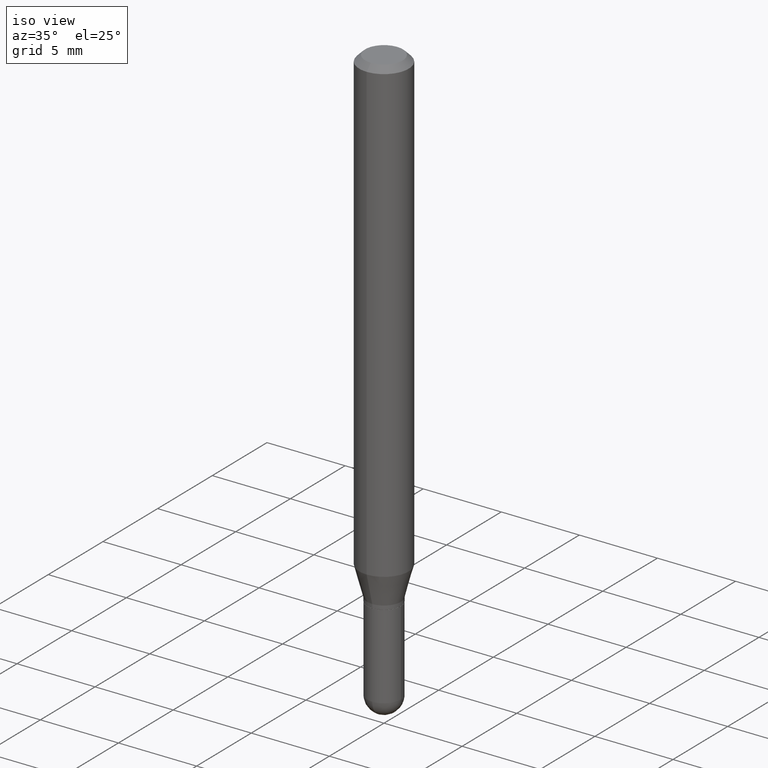
[diagram: clean part render]
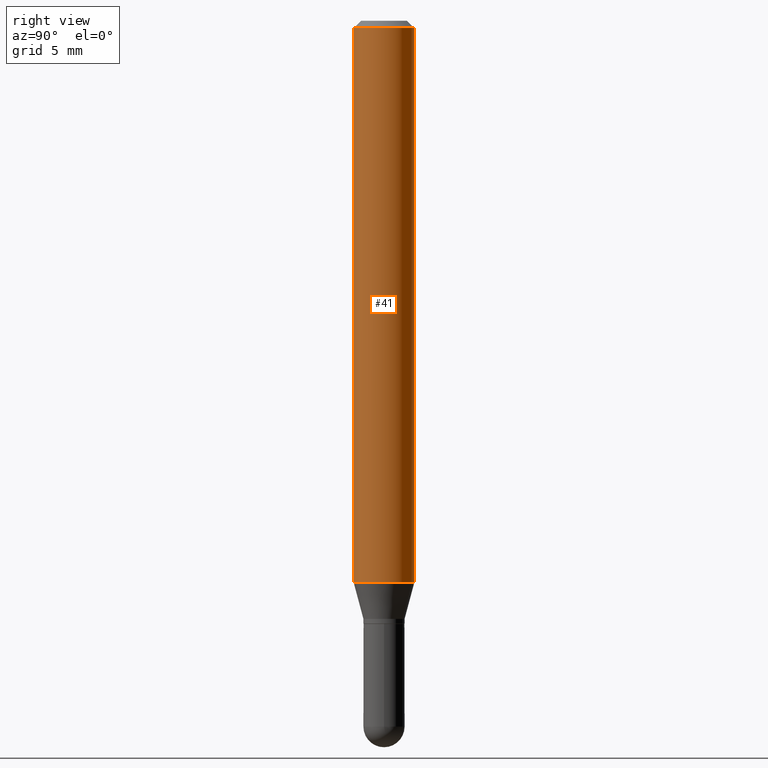
[diagram: tour spotlight — one face highlighted and labeled with its STEP entity id]
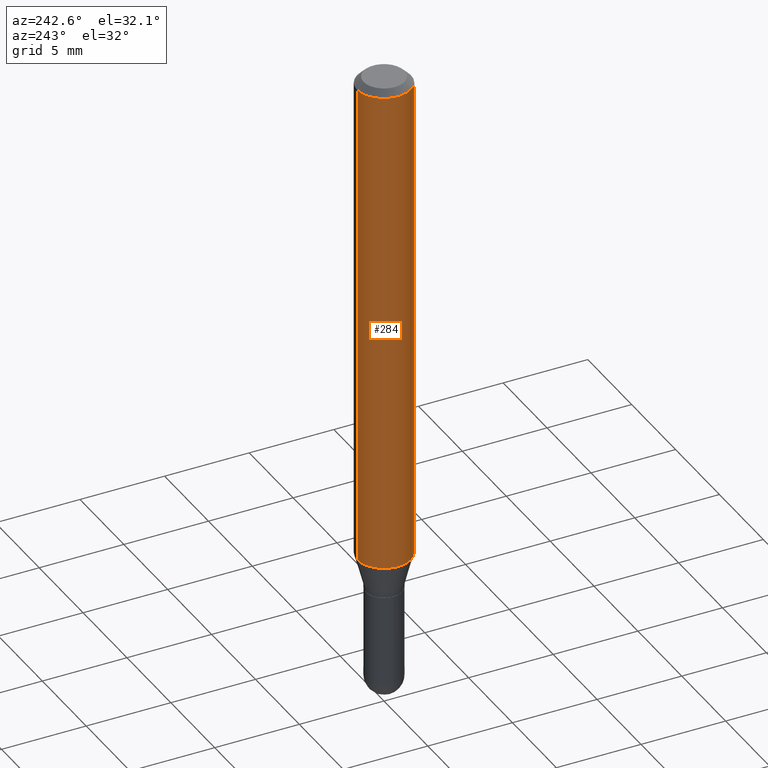
[diagram: tour spotlight — one face highlighted and labeled with its STEP entity id]
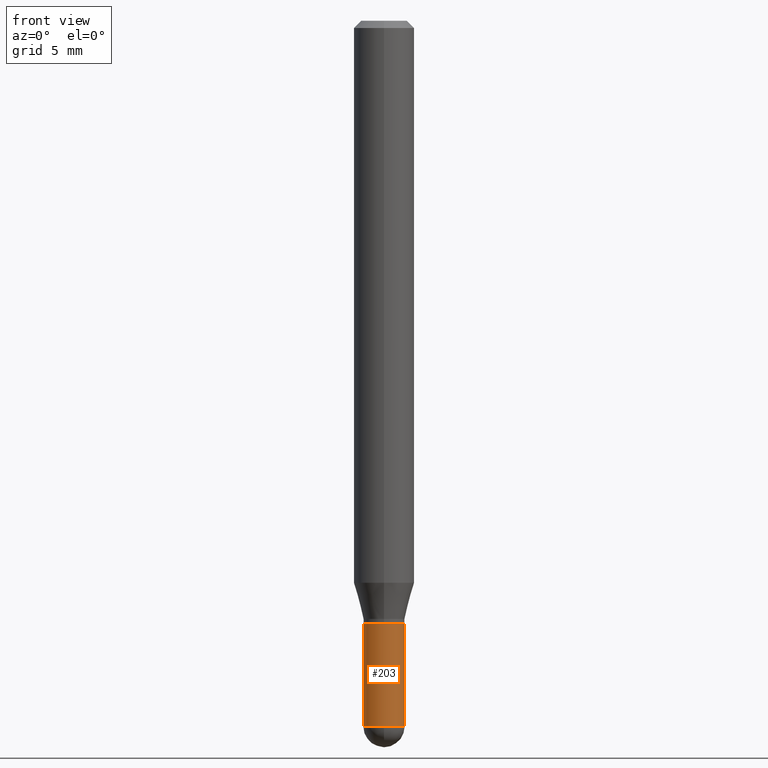
[diagram: tour spotlight — one face highlighted and labeled with its STEP entity id]
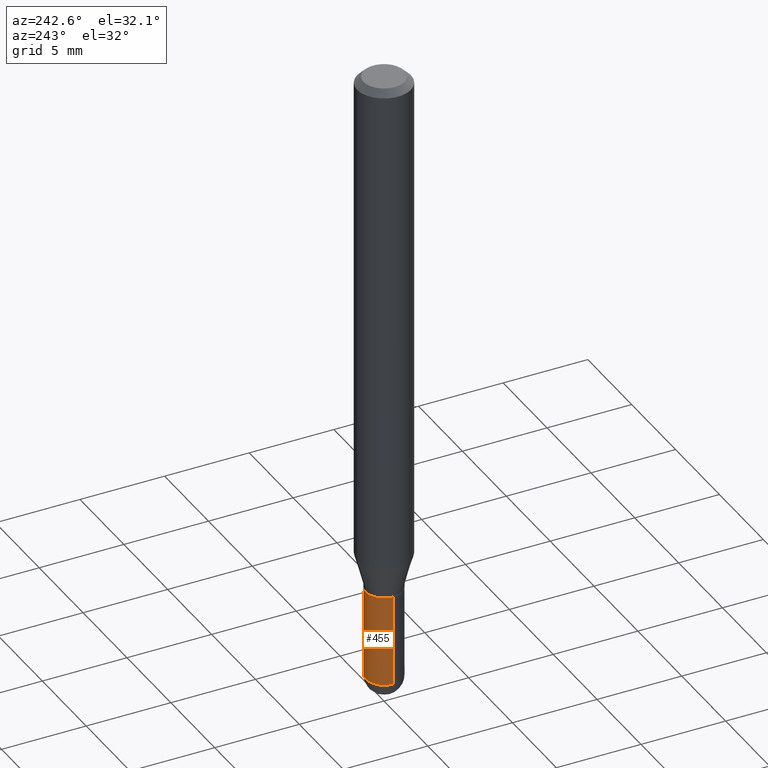
[diagram: tour spotlight — one face highlighted and labeled with its STEP entity id]
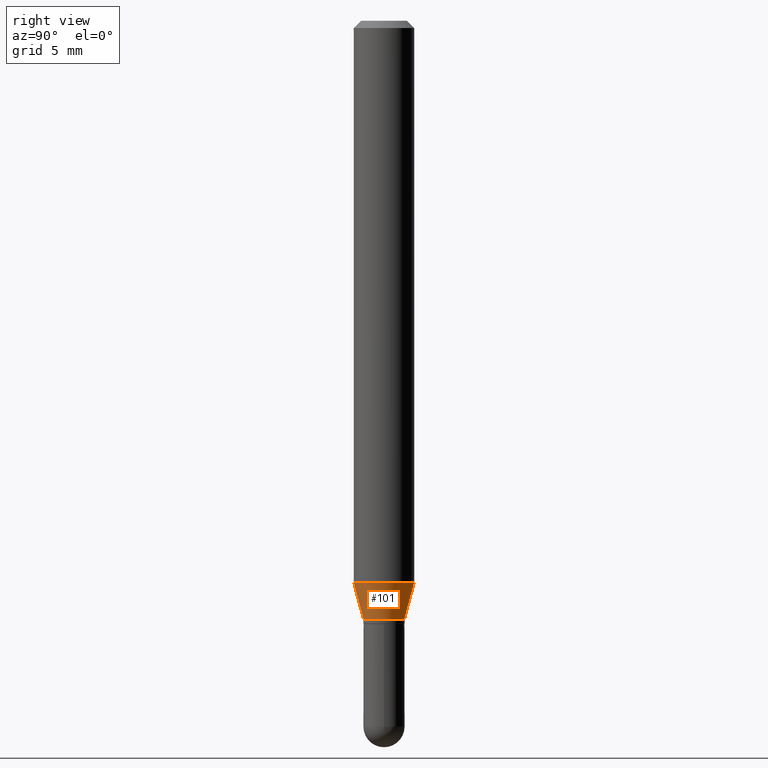
[diagram: tour spotlight — one face highlighted and labeled with its STEP entity id]
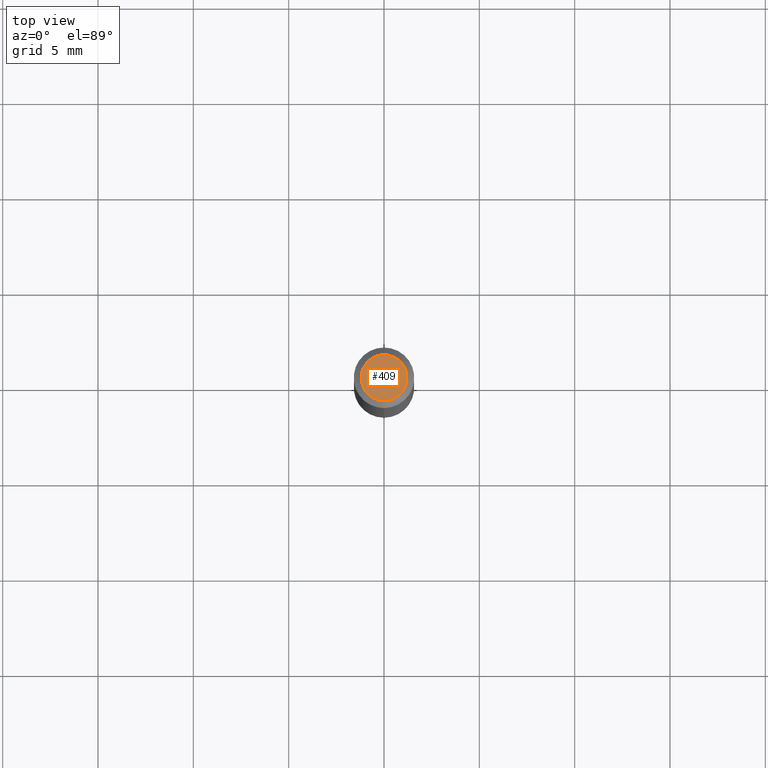
[diagram: tour spotlight — one face highlighted and labeled with its STEP entity id]
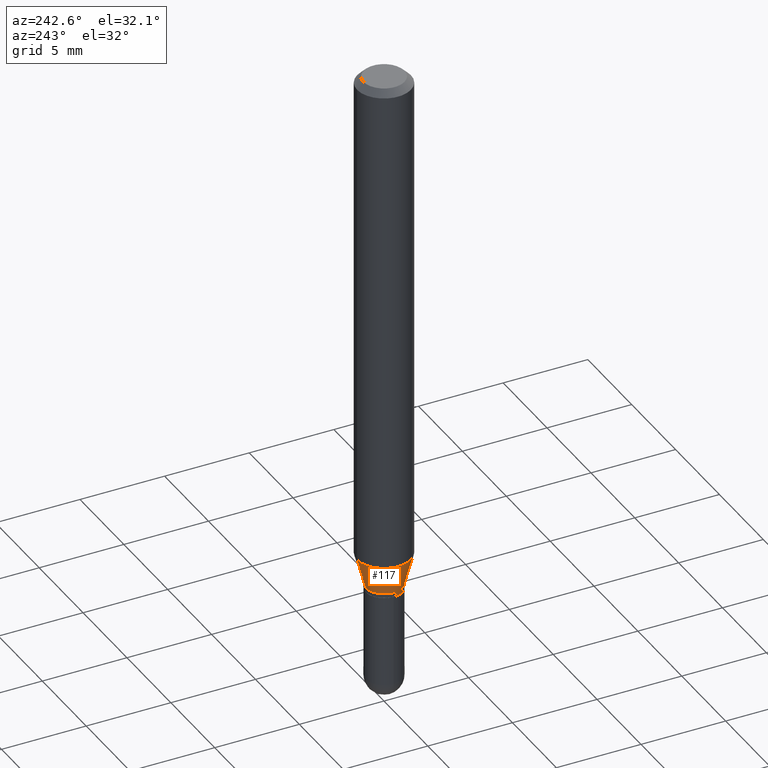
[diagram: tour spotlight — one face highlighted and labeled with its STEP entity id]
A machine part: a face-by-face anatomy tour. The part has 17 B-rep faces; the first image is the clean iso view, then the 7 largest visible faces are spotlighted one at a time (largest first), each with its STEP entity span.

Face 1 — right view, entity #41. In plain terms, the highlighted cylindrical surface (edge-blend (fillet) strip) has radius 1.5875 mm, axis along (-0, 0, 1).
Definition (entity closure, byte-faithful):
#4 = VECTOR ( 'NONE', #168, 39.37007874015748143 ) ;
#9 = ORIENTED_EDGE ( 'NONE', *, *, #295, .F. ) ;
#10 = CARTESIAN_POINT ( 'NONE',  ( -4.364351673553916201E-16, -0.06250000000000000000, 2.182108451735135262E-16 ) ) ;
#23 = DIRECTION ( 'NONE',  ( -2.445544093742278605E-29, 3.491373522776216420E-15, 1.000000000000000000 ) ) ;
#33 = CARTESIAN_POINT ( 'NONE',  ( 2.837709059571790746E-29, -4.051246633124596325E-15, -1.160358983848622572 ) ) ;
#35 = CARTESIAN_POINT ( 'NONE',  ( 4.440892098500912124E-16, 0.06249999999999598932, -1.160358983848622794 ) ) ;
#41 = ADVANCED_FACE ( 'NONE', ( #413 ), #442, .T. ) ;
#44 = ORIENTED_EDGE ( 'NONE', *, *, #261, .T. ) ;
#45 = CARTESIAN_POINT ( 'NONE',  ( 3.668316140613498255E-31, -5.237060284164438941E-17, -0.01500000000000032904 ) ) ;
#48 = EDGE_LOOP ( 'NONE', ( #453, #44, #9, #137 ) ) ;
#52 = LINE ( 'NONE', #472, #396 ) ;
#57 = CIRCLE ( 'NONE', #86, 0.06250000000000000000 ) ;
#58 = DIRECTION ( 'NONE',  ( -2.445544093742278605E-29, 3.491373522776216420E-15, 1.000000000000000000 ) ) ;
#61 = VERTEX_POINT ( 'NONE', #111 ) ;
#67 = CARTESIAN_POINT ( 'NONE',  ( -4.364351673553912750E-16, -0.06250000000000005551, -0.01500000000000011047 ) ) ;
#72 = CARTESIAN_POINT ( 'NONE',  ( 0.000000000000000000, 0.000000000000000000, 0.000000000000000000 ) ) ;
#82 = DIRECTION ( 'NONE',  ( -2.445544093742278605E-29, 3.491373522776216420E-15, 1.000000000000000000 ) ) ;
#86 = AXIS2_PLACEMENT_3D ( 'NONE', #45, #289, #246 ) ;
#111 = CARTESIAN_POINT ( 'NONE',  ( 4.440892098500911138E-16, 0.06249999999999995143, -0.01500000000000054588 ) ) ;
#128 = VERTEX_POINT ( 'NONE', #35 ) ;
#137 = ORIENTED_EDGE ( 'NONE', *, *, #400, .F. ) ;
#163 = CARTESIAN_POINT ( 'NONE',  ( -4.364351673553629746E-16, -0.06250000000000402456, -1.160358983848622350 ) ) ;
#168 = DIRECTION ( 'NONE',  ( -2.445544093742278605E-29, 3.491373522776216420E-15, 1.000000000000000000 ) ) ;
#187 = CIRCLE ( 'NONE', #330, 0.06250000000000000000 ) ;
#193 = EDGE_CURVE ( 'NONE', #222, #128, #187, .T. ) ;
#222 = VERTEX_POINT ( 'NONE', #163 ) ;
#246 = DIRECTION ( 'NONE',  ( -6.982962677686265922E-15, -1.000000000000000000, 3.483106191921935554E-15 ) ) ;
#261 = EDGE_CURVE ( 'NONE', #128, #61, #52, .T. ) ;
#289 = DIRECTION ( 'NONE',  ( -2.445544093742278605E-29, 3.491373522776216420E-15, 1.000000000000000000 ) ) ;
#295 = EDGE_CURVE ( 'NONE', #477, #61, #57, .T. ) ;
#315 = AXIS2_PLACEMENT_3D ( 'NONE', #72, #23, #496 ) ;
#330 = AXIS2_PLACEMENT_3D ( 'NONE', #33, #82, #346 ) ;
#346 = DIRECTION ( 'NONE',  ( -6.982962677686265922E-15, -1.000000000000000000, 4.370956789862821150E-15 ) ) ;
#396 = VECTOR ( 'NONE', #58, 39.37007874015748143 ) ;
#400 = EDGE_CURVE ( 'NONE', #222, #477, #483, .T. ) ;
#413 = FACE_OUTER_BOUND ( 'NONE', #48, .T. ) ;
#442 = CYLINDRICAL_SURFACE ( 'NONE', #315, 0.06250000000000000000 ) ;
#453 = ORIENTED_EDGE ( 'NONE', *, *, #193, .T. ) ;
#472 = CARTESIAN_POINT ( 'NONE',  ( 4.440892098500625669E-16, 0.06250000000000000000, -2.182108451735135262E-16 ) ) ;
#477 = VERTEX_POINT ( 'NONE', #67 ) ;
#483 = LINE ( 'NONE', #10, #4 ) ;
#496 = DIRECTION ( 'NONE',  ( -6.982962677686265922E-15, -1.000000000000000000, 3.491373522776216420E-15 ) ) ;

Face 2 — auxiliary view, entity #284. In plain terms, the highlighted cylindrical surface (edge-blend (fillet) strip) has radius 1.5875 mm, axis along (-0, 0, 1).
Definition (entity closure, byte-faithful):
#4 = VECTOR ( 'NONE', #168, 39.37007874015748143 ) ;
#10 = CARTESIAN_POINT ( 'NONE',  ( -4.364351673553916201E-16, -0.06250000000000000000, 2.182108451735135262E-16 ) ) ;
#12 = ORIENTED_EDGE ( 'NONE', *, *, #400, .T. ) ;
#35 = CARTESIAN_POINT ( 'NONE',  ( 4.440892098500912124E-16, 0.06249999999999598932, -1.160358983848622794 ) ) ;
#49 = CARTESIAN_POINT ( 'NONE',  ( 2.837709059571790746E-29, -4.051246633124596325E-15, -1.160358983848622572 ) ) ;
#52 = LINE ( 'NONE', #472, #396 ) ;
#58 = DIRECTION ( 'NONE',  ( -2.445544093742278605E-29, 3.491373522776216420E-15, 1.000000000000000000 ) ) ;
#61 = VERTEX_POINT ( 'NONE', #111 ) ;
#67 = CARTESIAN_POINT ( 'NONE',  ( -4.364351673553912750E-16, -0.06250000000000005551, -0.01500000000000011047 ) ) ;
#93 = FACE_OUTER_BOUND ( 'NONE', #408, .T. ) ;
#111 = CARTESIAN_POINT ( 'NONE',  ( 4.440892098500911138E-16, 0.06249999999999995143, -0.01500000000000054588 ) ) ;
#123 = AXIS2_PLACEMENT_3D ( 'NONE', #419, #511, #422 ) ;
#128 = VERTEX_POINT ( 'NONE', #35 ) ;
#139 = ORIENTED_EDGE ( 'NONE', *, *, #300, .T. ) ;
#163 = CARTESIAN_POINT ( 'NONE',  ( -4.364351673553629746E-16, -0.06250000000000402456, -1.160358983848622350 ) ) ;
#168 = DIRECTION ( 'NONE',  ( -2.445544093742278605E-29, 3.491373522776216420E-15, 1.000000000000000000 ) ) ;
#175 = DIRECTION ( 'NONE',  ( -2.445544093742278605E-29, 3.491373522776216420E-15, 1.000000000000000000 ) ) ;
#207 = DIRECTION ( 'NONE',  ( -2.445544093742278605E-29, 3.491373522776216420E-15, 1.000000000000000000 ) ) ;
#209 = EDGE_CURVE ( 'NONE', #61, #477, #347, .T. ) ;
#212 = CARTESIAN_POINT ( 'NONE',  ( 0.000000000000000000, 0.000000000000000000, 0.000000000000000000 ) ) ;
#222 = VERTEX_POINT ( 'NONE', #163 ) ;
#228 = ORIENTED_EDGE ( 'NONE', *, *, #261, .F. ) ;
#261 = EDGE_CURVE ( 'NONE', #128, #61, #52, .T. ) ;
#284 = ADVANCED_FACE ( 'NONE', ( #93 ), #359, .T. ) ;
#290 = AXIS2_PLACEMENT_3D ( 'NONE', #49, #175, #326 ) ;
#300 = EDGE_CURVE ( 'NONE', #128, #222, #339, .T. ) ;
#326 = DIRECTION ( 'NONE',  ( -6.982962677686265922E-15, -1.000000000000000000, 4.370956789862821150E-15 ) ) ;
#339 = CIRCLE ( 'NONE', #290, 0.06250000000000000000 ) ;
#347 = CIRCLE ( 'NONE', #123, 0.06250000000000000000 ) ;
#359 = CYLINDRICAL_SURFACE ( 'NONE', #424, 0.06250000000000000000 ) ;
#383 = ORIENTED_EDGE ( 'NONE', *, *, #209, .F. ) ;
#396 = VECTOR ( 'NONE', #58, 39.37007874015748143 ) ;
#397 = DIRECTION ( 'NONE',  ( -6.982962677686265922E-15, -1.000000000000000000, 3.491373522776216420E-15 ) ) ;
#400 = EDGE_CURVE ( 'NONE', #222, #477, #483, .T. ) ;
#408 = EDGE_LOOP ( 'NONE', ( #228, #139, #12, #383 ) ) ;
#419 = CARTESIAN_POINT ( 'NONE',  ( 3.668316140613498255E-31, -5.237060284164438941E-17, -0.01500000000000032904 ) ) ;
#422 = DIRECTION ( 'NONE',  ( -6.982962677686265922E-15, -1.000000000000000000, 3.483106191921935554E-15 ) ) ;
#424 = AXIS2_PLACEMENT_3D ( 'NONE', #212, #207, #397 ) ;
#472 = CARTESIAN_POINT ( 'NONE',  ( 4.440892098500625669E-16, 0.06250000000000000000, -2.182108451735135262E-16 ) ) ;
#477 = VERTEX_POINT ( 'NONE', #67 ) ;
#483 = LINE ( 'NONE', #10, #4 ) ;
#511 = DIRECTION ( 'NONE',  ( -2.445544093742278605E-29, 3.491373522776216420E-15, 1.000000000000000000 ) ) ;

Face 3 — front view, entity #203. In plain terms, the highlighted cylindrical surface (edge-blend (fillet) strip) has radius 1.0795 mm, axis along (-0, 0, 1).
Definition (entity closure, byte-faithful):
#13 = AXIS2_PLACEMENT_3D ( 'NONE', #191, #156, #352 ) ;
#28 = ORIENTED_EDGE ( 'NONE', *, *, #148, .F. ) ;
#32 = VERTEX_POINT ( 'NONE', #454 ) ;
#37 = AXIS2_PLACEMENT_3D ( 'NONE', #43, #116, #344 ) ;
#42 = DIRECTION ( 'NONE',  ( -2.445468806185136597E-29, 3.491481338843145583E-15, 1.000000000000000000 ) ) ;
#43 = CARTESIAN_POINT ( 'NONE',  ( 3.564270785014837509E-29, -5.088834051363884851E-15, -1.457500000000000240 ) ) ;
#51 = EDGE_CURVE ( 'NONE', #399, #169, #183, .T. ) ;
#64 = DIRECTION ( 'NONE',  ( -2.445468806185136597E-29, 3.491481338843145583E-15, 1.000000000000000000 ) ) ;
#65 = VECTOR ( 'NONE', #260, 39.37007874015748143 ) ;
#78 = EDGE_CURVE ( 'NONE', #399, #32, #196, .T. ) ;
#85 = EDGE_CURVE ( 'NONE', #415, #124, #146, .T. ) ;
#88 = ORIENTED_EDGE ( 'NONE', *, *, #143, .T. ) ;
#102 = CARTESIAN_POINT ( 'NONE',  ( 3.564270785014837509E-29, -5.088834051363884851E-15, -1.457500000000000240 ) ) ;
#116 = DIRECTION ( 'NONE',  ( -2.445468806185136597E-29, 3.491481338843145583E-15, 1.000000000000000000 ) ) ;
#124 = VERTEX_POINT ( 'NONE', #275 ) ;
#143 = EDGE_CURVE ( 'NONE', #32, #415, #259, .T. ) ;
#144 = ORIENTED_EDGE ( 'NONE', *, *, #78, .T. ) ;
#146 = LINE ( 'NONE', #296, #65 ) ;
#148 = EDGE_CURVE ( 'NONE', #169, #124, #150, .T. ) ;
#150 = CIRCLE ( 'NONE', #497, 0.04249999999999999611 ) ;
#156 = DIRECTION ( 'NONE',  ( -2.445468806185136597E-29, 3.491481338843145583E-15, 1.000000000000000000 ) ) ;
#169 = VERTEX_POINT ( 'NONE', #380 ) ;
#183 = LINE ( 'NONE', #302, #375 ) ;
#186 = ORIENTED_EDGE ( 'NONE', *, *, #51, .F. ) ;
#191 = CARTESIAN_POINT ( 'NONE',  ( 0.000000000000000000, 0.000000000000000000, 0.000000000000000000 ) ) ;
#196 = CIRCLE ( 'NONE', #445, 0.04250000000000000999 ) ;
#203 = ADVANCED_FACE ( 'NONE', ( #387 ), #504, .T. ) ;
#238 = DIRECTION ( 'NONE',  ( 1.000000000000000000, -6.982962677686265133E-15, 0.000000000000000000 ) ) ;
#249 = CARTESIAN_POINT ( 'NONE',  ( -0.04250000000000000999, -4.415883496413759874E-15, -1.457500000000000240 ) ) ;
#259 = CIRCLE ( 'NONE', #37, 0.04250000000000000999 ) ;
#260 = DIRECTION ( 'NONE',  ( -2.445468806185136877E-29, 3.491481338843145188E-15, 1.000000000000000000 ) ) ;
#268 = EDGE_LOOP ( 'NONE', ( #186, #144, #88, #430, #28 ) ) ;
#275 = CARTESIAN_POINT ( 'NONE',  ( 0.04249999999999999611, -4.643670180661383298E-15, -1.245000000000000329 ) ) ;
#296 = CARTESIAN_POINT ( 'NONE',  ( 0.04250000000000000999, -2.967759138016664042E-16, 2.072375129713273202E-30 ) ) ;
#302 = CARTESIAN_POINT ( 'NONE',  ( -0.04250000000000000999, 3.019806626980426500E-16, -2.090547413358335560E-30 ) ) ;
#329 = CARTESIAN_POINT ( 'NONE',  ( 0.04250000000000000999, -5.014640072913468189E-15, -1.457500000000000240 ) ) ;
#342 = DIRECTION ( 'NONE',  ( -2.445468806185136877E-29, 3.491481338843145188E-15, 1.000000000000000000 ) ) ;
#344 = DIRECTION ( 'NONE',  ( 1.000000000000000000, -6.982962677686273810E-15, 0.000000000000000000 ) ) ;
#352 = DIRECTION ( 'NONE',  ( 1.000000000000000000, -6.982962677686266711E-15, 4.876176775795935793E-29 ) ) ;
#372 = DIRECTION ( 'NONE',  ( 1.000000000000000000, -6.982962677686273810E-15, 0.000000000000000000 ) ) ;
#375 = VECTOR ( 'NONE', #342, 39.37007874015748143 ) ;
#380 = CARTESIAN_POINT ( 'NONE',  ( -0.04249999999999999611, -4.415883496413758296E-15, -1.245000000000000329 ) ) ;
#387 = FACE_OUTER_BOUND ( 'NONE', #268, .T. ) ;
#399 = VERTEX_POINT ( 'NONE', #249 ) ;
#415 = VERTEX_POINT ( 'NONE', #329 ) ;
#430 = ORIENTED_EDGE ( 'NONE', *, *, #85, .T. ) ;
#445 = AXIS2_PLACEMENT_3D ( 'NONE', #102, #64, #372 ) ;
#454 = CARTESIAN_POINT ( 'NONE',  ( -2.967759138016310534E-16, -0.04250000000000514477, -1.457500000000000018 ) ) ;
#471 = CARTESIAN_POINT ( 'NONE',  ( 3.044608663700495534E-29, -4.346894266859716647E-15, -1.245000000000000329 ) ) ;
#497 = AXIS2_PLACEMENT_3D ( 'NONE', #471, #42, #238 ) ;
#504 = CYLINDRICAL_SURFACE ( 'NONE', #13, 0.04250000000000000999 ) ;

Face 4 — auxiliary view, entity #455. In plain terms, the highlighted cylindrical surface (edge-blend (fillet) strip) has radius 1.0795 mm, axis along (-0, 0, 1).
Definition (entity closure, byte-faithful):
#16 = ORIENTED_EDGE ( 'NONE', *, *, #127, .T. ) ;
#20 = CIRCLE ( 'NONE', #506, 0.04250000000000000999 ) ;
#24 = EDGE_CURVE ( 'NONE', #415, #189, #485, .T. ) ;
#51 = EDGE_CURVE ( 'NONE', #399, #169, #183, .T. ) ;
#54 = ORIENTED_EDGE ( 'NONE', *, *, #51, .T. ) ;
#65 = VECTOR ( 'NONE', #260, 39.37007874015748143 ) ;
#85 = EDGE_CURVE ( 'NONE', #415, #124, #146, .T. ) ;
#103 = FACE_OUTER_BOUND ( 'NONE', #178, .T. ) ;
#105 = AXIS2_PLACEMENT_3D ( 'NONE', #185, #371, #145 ) ;
#106 = CYLINDRICAL_SURFACE ( 'NONE', #105, 0.04250000000000000999 ) ;
#124 = VERTEX_POINT ( 'NONE', #275 ) ;
#127 = EDGE_CURVE ( 'NONE', #189, #399, #20, .T. ) ;
#132 = ORIENTED_EDGE ( 'NONE', *, *, #24, .T. ) ;
#145 = DIRECTION ( 'NONE',  ( 1.000000000000000000, -6.982962677686266711E-15, 4.876176775795935793E-29 ) ) ;
#146 = LINE ( 'NONE', #296, #65 ) ;
#167 = DIRECTION ( 'NONE',  ( -2.445468806185136597E-29, 3.491481338843145583E-15, 1.000000000000000000 ) ) ;
#169 = VERTEX_POINT ( 'NONE', #380 ) ;
#176 = ORIENTED_EDGE ( 'NONE', *, *, #420, .F. ) ;
#178 = EDGE_LOOP ( 'NONE', ( #16, #54, #176, #411, #132 ) ) ;
#179 = CARTESIAN_POINT ( 'NONE',  ( 3.044608663700495534E-29, -4.346894266859716647E-15, -1.245000000000000329 ) ) ;
#183 = LINE ( 'NONE', #302, #375 ) ;
#185 = CARTESIAN_POINT ( 'NONE',  ( 0.000000000000000000, 0.000000000000000000, 0.000000000000000000 ) ) ;
#189 = VERTEX_POINT ( 'NONE', #466 ) ;
#213 = AXIS2_PLACEMENT_3D ( 'NONE', #265, #370, #233 ) ;
#214 = AXIS2_PLACEMENT_3D ( 'NONE', #179, #297, #403 ) ;
#233 = DIRECTION ( 'NONE',  ( 1.000000000000000000, -6.982962677686273810E-15, 0.000000000000000000 ) ) ;
#249 = CARTESIAN_POINT ( 'NONE',  ( -0.04250000000000000999, -4.415883496413759874E-15, -1.457500000000000240 ) ) ;
#260 = DIRECTION ( 'NONE',  ( -2.445468806185136877E-29, 3.491481338843145188E-15, 1.000000000000000000 ) ) ;
#265 = CARTESIAN_POINT ( 'NONE',  ( 3.564270785014837509E-29, -5.088834051363884851E-15, -1.457500000000000240 ) ) ;
#275 = CARTESIAN_POINT ( 'NONE',  ( 0.04249999999999999611, -4.643670180661383298E-15, -1.245000000000000329 ) ) ;
#296 = CARTESIAN_POINT ( 'NONE',  ( 0.04250000000000000999, -2.967759138016664042E-16, 2.072375129713273202E-30 ) ) ;
#297 = DIRECTION ( 'NONE',  ( -2.445468806185136597E-29, 3.491481338843145583E-15, 1.000000000000000000 ) ) ;
#302 = CARTESIAN_POINT ( 'NONE',  ( -0.04250000000000000999, 3.019806626980426500E-16, -2.090547413358335560E-30 ) ) ;
#314 = DIRECTION ( 'NONE',  ( 1.000000000000000000, -6.982962677686273810E-15, 0.000000000000000000 ) ) ;
#329 = CARTESIAN_POINT ( 'NONE',  ( 0.04250000000000000999, -5.014640072913468189E-15, -1.457500000000000240 ) ) ;
#342 = DIRECTION ( 'NONE',  ( -2.445468806185136877E-29, 3.491481338843145188E-15, 1.000000000000000000 ) ) ;
#370 = DIRECTION ( 'NONE',  ( -2.445468806185136597E-29, 3.491481338843145583E-15, 1.000000000000000000 ) ) ;
#371 = DIRECTION ( 'NONE',  ( -2.445468806185136597E-29, 3.491481338843145583E-15, 1.000000000000000000 ) ) ;
#375 = VECTOR ( 'NONE', #342, 39.37007874015748143 ) ;
#380 = CARTESIAN_POINT ( 'NONE',  ( -0.04249999999999999611, -4.415883496413758296E-15, -1.245000000000000329 ) ) ;
#399 = VERTEX_POINT ( 'NONE', #249 ) ;
#403 = DIRECTION ( 'NONE',  ( 1.000000000000000000, -6.982962677686265133E-15, 0.000000000000000000 ) ) ;
#411 = ORIENTED_EDGE ( 'NONE', *, *, #85, .F. ) ;
#415 = VERTEX_POINT ( 'NONE', #329 ) ;
#420 = EDGE_CURVE ( 'NONE', #124, #169, #478, .T. ) ;
#427 = CARTESIAN_POINT ( 'NONE',  ( 3.564270785014837509E-29, -5.088834051363884851E-15, -1.457500000000000240 ) ) ;
#455 = ADVANCED_FACE ( 'NONE', ( #103 ), #106, .T. ) ;
#466 = CARTESIAN_POINT ( 'NONE',  ( 3.019806626980785432E-16, 0.04249999999999495154, -1.457500000000000462 ) ) ;
#478 = CIRCLE ( 'NONE', #214, 0.04249999999999999611 ) ;
#485 = CIRCLE ( 'NONE', #213, 0.04250000000000000999 ) ;
#506 = AXIS2_PLACEMENT_3D ( 'NONE', #427, #167, #314 ) ;

Face 5 — right view, entity #101. In plain terms, the highlighted conical surface has half-angle 15 deg.
Definition (entity closure, byte-faithful):
#11 = CARTESIAN_POINT ( 'NONE',  ( -2.967759138016355400E-16, -0.04250000000000423578, -1.235000000000000098 ) ) ;
#33 = CARTESIAN_POINT ( 'NONE',  ( 2.837709059571790746E-29, -4.051246633124596325E-15, -1.160358983848622572 ) ) ;
#35 = CARTESIAN_POINT ( 'NONE',  ( 4.440892098500912124E-16, 0.06249999999999598932, -1.160358983848622794 ) ) ;
#63 = LINE ( 'NONE', #405, #321 ) ;
#68 = CARTESIAN_POINT ( 'NONE',  ( 3.730349362740815744E-16, 0.04249999999999561073, -1.235000000000000542 ) ) ;
#82 = DIRECTION ( 'NONE',  ( -2.445544093742278605E-29, 3.491373522776216420E-15, 1.000000000000000000 ) ) ;
#96 = VERTEX_POINT ( 'NONE', #68 ) ;
#101 = ADVANCED_FACE ( 'NONE', ( #282 ), #361, .T. ) ;
#110 = ORIENTED_EDGE ( 'NONE', *, *, #247, .F. ) ;
#128 = VERTEX_POINT ( 'NONE', #35 ) ;
#129 = DIRECTION ( 'NONE',  ( -6.982962677686266711E-15, -1.000000000000000000, 6.427877632151220009E-15 ) ) ;
#163 = CARTESIAN_POINT ( 'NONE',  ( -4.364351673553629746E-16, -0.06250000000000402456, -1.160358983848622350 ) ) ;
#165 = LINE ( 'NONE', #327, #376 ) ;
#187 = CIRCLE ( 'NONE', #330, 0.06250000000000000000 ) ;
#193 = EDGE_CURVE ( 'NONE', #222, #128, #187, .T. ) ;
#201 = CARTESIAN_POINT ( 'NONE',  ( 3.020246955771714794E-29, -4.311846300628628977E-15, -1.235000000000000320 ) ) ;
#210 = ORIENTED_EDGE ( 'NONE', *, *, #473, .T. ) ;
#221 = AXIS2_PLACEMENT_3D ( 'NONE', #201, #317, #129 ) ;
#222 = VERTEX_POINT ( 'NONE', #163 ) ;
#247 = EDGE_CURVE ( 'NONE', #248, #222, #165, .T. ) ;
#248 = VERTEX_POINT ( 'NONE', #11 ) ;
#263 = DIRECTION ( 'NONE',  ( -2.445544093742278605E-29, 3.491373522776216420E-15, 1.000000000000000000 ) ) ;
#282 = FACE_OUTER_BOUND ( 'NONE', #439, .T. ) ;
#317 = DIRECTION ( 'NONE',  ( -2.445544093742278605E-29, 3.491373522776216420E-15, 1.000000000000000000 ) ) ;
#321 = VECTOR ( 'NONE', #487, 39.37007874015748143 ) ;
#322 = ORIENTED_EDGE ( 'NONE', *, *, #193, .F. ) ;
#327 = CARTESIAN_POINT ( 'NONE',  ( -2.967759138016355400E-16, -0.04250000000000423578, -1.235000000000000098 ) ) ;
#330 = AXIS2_PLACEMENT_3D ( 'NONE', #33, #82, #346 ) ;
#346 = DIRECTION ( 'NONE',  ( -6.982962677686265922E-15, -1.000000000000000000, 4.370956789862821150E-15 ) ) ;
#361 = CONICAL_SURFACE ( 'NONE', #221, 0.04249999999999991979, 0.2617993877991497409 ) ;
#365 = CARTESIAN_POINT ( 'NONE',  ( 3.020246955771714794E-29, -4.311846300628628977E-15, -1.235000000000000320 ) ) ;
#374 = ORIENTED_EDGE ( 'NONE', *, *, #510, .T. ) ;
#376 = VECTOR ( 'NONE', #434, 39.37007874015748854 ) ;
#405 = CARTESIAN_POINT ( 'NONE',  ( 3.019806626980721830E-16, 0.04249999999999561073, -1.235000000000000542 ) ) ;
#434 = DIRECTION ( 'NONE',  ( -1.807323732225326589E-15, -0.2588190451025176864, 0.9659258262890690894 ) ) ;
#439 = EDGE_LOOP ( 'NONE', ( #374, #210, #322, #110 ) ) ;
#449 = DIRECTION ( 'NONE',  ( -6.982962677686266711E-15, -1.000000000000000000, 6.427877632151220009E-15 ) ) ;
#467 = AXIS2_PLACEMENT_3D ( 'NONE', #365, #263, #449 ) ;
#473 = EDGE_CURVE ( 'NONE', #96, #128, #63, .T. ) ;
#486 = CIRCLE ( 'NONE', #467, 0.04249999999999991979 ) ;
#487 = DIRECTION ( 'NONE',  ( 1.839019923739596765E-15, 0.2588190451025244587, 0.9659258262890673130 ) ) ;
#510 = EDGE_CURVE ( 'NONE', #248, #96, #486, .T. ) ;

Face 6 — top view, entity #409. In plain terms, the highlighted planar face has unit normal (0, -0, -1).
Definition (entity closure, byte-faithful):
#15 = CARTESIAN_POINT ( 'NONE',  ( -3.773273898774340269E-16, -0.04749999999999999362, -1.623118266434685701E-16 ) ) ;
#39 = CARTESIAN_POINT ( 'NONE',  ( 8.025103541319487376E-45, -1.145701445064732670E-30, -3.281520689753388471E-16 ) ) ;
#80 = AXIS2_PLACEMENT_3D ( 'NONE', #508, #310, #461 ) ;
#89 = DIRECTION ( 'NONE',  ( 2.445544093742278325E-29, -3.491373522776216420E-15, -1.000000000000000000 ) ) ;
#97 = EDGE_LOOP ( 'NONE', ( #309, #180 ) ) ;
#133 = CARTESIAN_POINT ( 'NONE',  ( 3.316907271900976096E-16, 0.04749999999999999362, -3.299162768195397005E-16 ) ) ;
#158 = CIRCLE ( 'NONE', #262, 0.04749999999999999362 ) ;
#170 = FACE_OUTER_BOUND ( 'NONE', #97, .T. ) ;
#180 = ORIENTED_EDGE ( 'NONE', *, *, #192, .T. ) ;
#181 = CIRCLE ( 'NONE', #80, 0.04749999999999999362 ) ;
#192 = EDGE_CURVE ( 'NONE', #291, #377, #158, .T. ) ;
#197 = AXIS2_PLACEMENT_3D ( 'NONE', #133, #89, #393 ) ;
#211 = CARTESIAN_POINT ( 'NONE',  ( 3.840629472727447874E-16, 0.04749999999999999362, -4.939923113072091241E-16 ) ) ;
#217 = EDGE_CURVE ( 'NONE', #377, #291, #181, .T. ) ;
#262 = AXIS2_PLACEMENT_3D ( 'NONE', #39, #350, #423 ) ;
#291 = VERTEX_POINT ( 'NONE', #15 ) ;
#309 = ORIENTED_EDGE ( 'NONE', *, *, #217, .T. ) ;
#310 = DIRECTION ( 'NONE',  ( -2.445544093742278605E-29, 3.491373522776216420E-15, 1.000000000000000000 ) ) ;
#350 = DIRECTION ( 'NONE',  ( -2.445544093742278605E-29, 3.491373522776216420E-15, 1.000000000000000000 ) ) ;
#377 = VERTEX_POINT ( 'NONE', #211 ) ;
#393 = DIRECTION ( 'NONE',  ( 6.982962677686265922E-15, 1.000000000000000000, -3.491373522776216420E-15 ) ) ;
#409 = ADVANCED_FACE ( 'NONE', ( #170 ), #475, .F. ) ;
#423 = DIRECTION ( 'NONE',  ( -6.982962677686266711E-15, -1.000000000000000000, 3.491373522776216814E-15 ) ) ;
#461 = DIRECTION ( 'NONE',  ( -6.982962677686266711E-15, -1.000000000000000000, 3.491373522776216814E-15 ) ) ;
#475 = PLANE ( 'NONE',  #197 ) ;
#508 = CARTESIAN_POINT ( 'NONE',  ( 8.025103541319487376E-45, -1.145701445064732670E-30, -3.281520689753388471E-16 ) ) ;

Face 7 — auxiliary view, entity #117. In plain terms, the highlighted conical surface has half-angle 15 deg.
Definition (entity closure, byte-faithful):
#2 = FACE_OUTER_BOUND ( 'NONE', #87, .T. ) ;
#11 = CARTESIAN_POINT ( 'NONE',  ( -2.967759138016355400E-16, -0.04250000000000423578, -1.235000000000000098 ) ) ;
#18 = ORIENTED_EDGE ( 'NONE', *, *, #247, .T. ) ;
#21 = AXIS2_PLACEMENT_3D ( 'NONE', #205, #243, #425 ) ;
#35 = CARTESIAN_POINT ( 'NONE',  ( 4.440892098500912124E-16, 0.06249999999999598932, -1.160358983848622794 ) ) ;
#49 = CARTESIAN_POINT ( 'NONE',  ( 2.837709059571790746E-29, -4.051246633124596325E-15, -1.160358983848622572 ) ) ;
#63 = LINE ( 'NONE', #405, #321 ) ;
#68 = CARTESIAN_POINT ( 'NONE',  ( 3.730349362740815744E-16, 0.04249999999999561073, -1.235000000000000542 ) ) ;
#74 = DIRECTION ( 'NONE',  ( -6.982962677686266711E-15, -1.000000000000000000, 6.427877632151220009E-15 ) ) ;
#87 = EDGE_LOOP ( 'NONE', ( #325, #198, #18, #440 ) ) ;
#96 = VERTEX_POINT ( 'NONE', #68 ) ;
#117 = ADVANCED_FACE ( 'NONE', ( #2 ), #457, .T. ) ;
#119 = CARTESIAN_POINT ( 'NONE',  ( 3.020246955771714794E-29, -4.311846300628628977E-15, -1.235000000000000320 ) ) ;
#121 = DIRECTION ( 'NONE',  ( -2.445544093742278605E-29, 3.491373522776216420E-15, 1.000000000000000000 ) ) ;
#128 = VERTEX_POINT ( 'NONE', #35 ) ;
#163 = CARTESIAN_POINT ( 'NONE',  ( -4.364351673553629746E-16, -0.06250000000000402456, -1.160358983848622350 ) ) ;
#165 = LINE ( 'NONE', #327, #376 ) ;
#174 = EDGE_CURVE ( 'NONE', #96, #248, #308, .T. ) ;
#175 = DIRECTION ( 'NONE',  ( -2.445544093742278605E-29, 3.491373522776216420E-15, 1.000000000000000000 ) ) ;
#198 = ORIENTED_EDGE ( 'NONE', *, *, #174, .T. ) ;
#205 = CARTESIAN_POINT ( 'NONE',  ( 3.020246955771714794E-29, -4.311846300628628977E-15, -1.235000000000000320 ) ) ;
#222 = VERTEX_POINT ( 'NONE', #163 ) ;
#243 = DIRECTION ( 'NONE',  ( -2.445544093742278605E-29, 3.491373522776216420E-15, 1.000000000000000000 ) ) ;
#247 = EDGE_CURVE ( 'NONE', #248, #222, #165, .T. ) ;
#248 = VERTEX_POINT ( 'NONE', #11 ) ;
#290 = AXIS2_PLACEMENT_3D ( 'NONE', #49, #175, #326 ) ;
#300 = EDGE_CURVE ( 'NONE', #128, #222, #339, .T. ) ;
#308 = CIRCLE ( 'NONE', #21, 0.04249999999999991979 ) ;
#321 = VECTOR ( 'NONE', #487, 39.37007874015748143 ) ;
#325 = ORIENTED_EDGE ( 'NONE', *, *, #473, .F. ) ;
#326 = DIRECTION ( 'NONE',  ( -6.982962677686265922E-15, -1.000000000000000000, 4.370956789862821150E-15 ) ) ;
#327 = CARTESIAN_POINT ( 'NONE',  ( -2.967759138016355400E-16, -0.04250000000000423578, -1.235000000000000098 ) ) ;
#338 = AXIS2_PLACEMENT_3D ( 'NONE', #119, #121, #74 ) ;
#339 = CIRCLE ( 'NONE', #290, 0.06250000000000000000 ) ;
#376 = VECTOR ( 'NONE', #434, 39.37007874015748854 ) ;
#405 = CARTESIAN_POINT ( 'NONE',  ( 3.019806626980721830E-16, 0.04249999999999561073, -1.235000000000000542 ) ) ;
#425 = DIRECTION ( 'NONE',  ( -6.982962677686266711E-15, -1.000000000000000000, 6.427877632151220009E-15 ) ) ;
#434 = DIRECTION ( 'NONE',  ( -1.807323732225326589E-15, -0.2588190451025176864, 0.9659258262890690894 ) ) ;
#440 = ORIENTED_EDGE ( 'NONE', *, *, #300, .F. ) ;
#457 = CONICAL_SURFACE ( 'NONE', #338, 0.04249999999999991979, 0.2617993877991497409 ) ;
#473 = EDGE_CURVE ( 'NONE', #96, #128, #63, .T. ) ;
#487 = DIRECTION ( 'NONE',  ( 1.839019923739596765E-15, 0.2588190451025244587, 0.9659258262890673130 ) ) ;